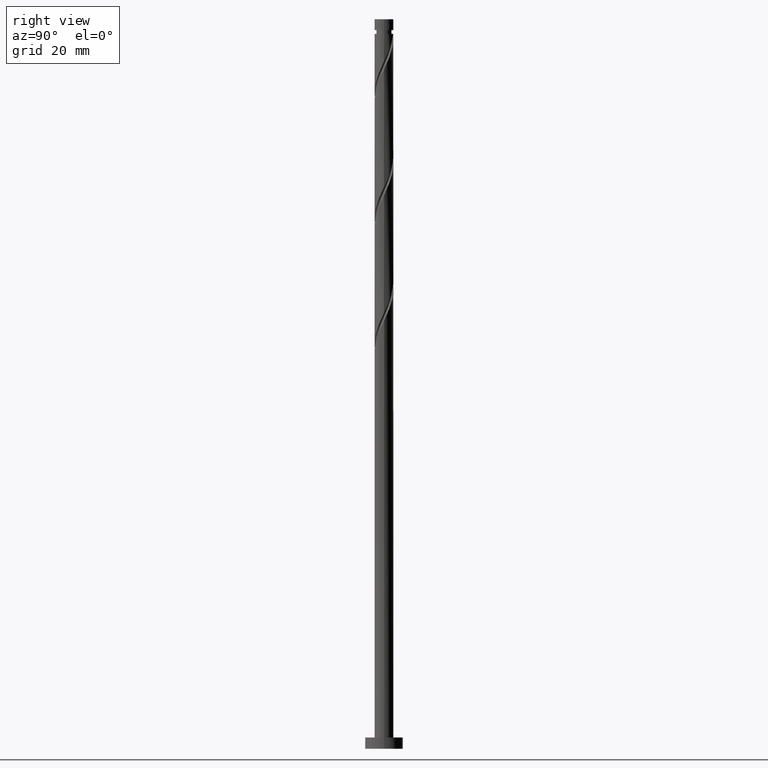
[diagram: clean part render]
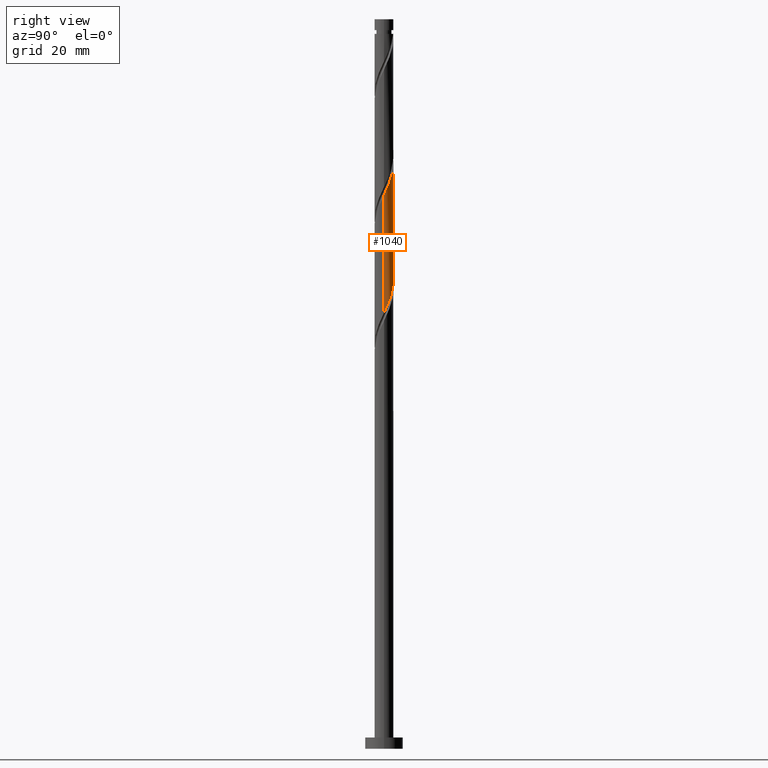
[diagram: same view with one face highlighted and labeled with its STEP entity id]
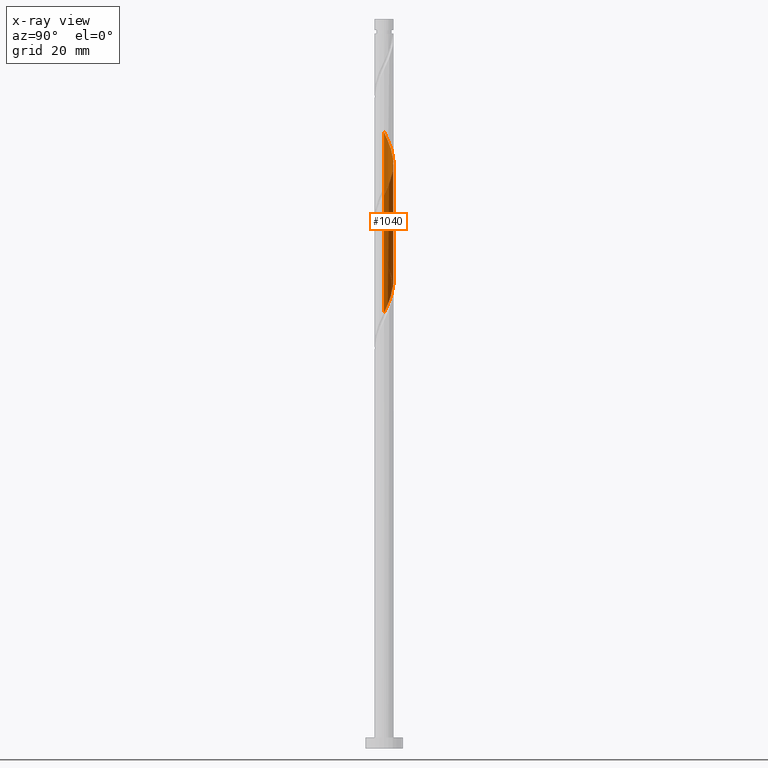
[diagram: x-ray of the same camera — body ghosted, the highlighted face saturated]
A machine part, right view. The second image highlights one B-rep face of the part: STEP entity #1040.
The next image is the same camera in x-ray: the body ghosted, the highlighted face saturated — about 0% of this face is hidden behind the body in this view.
In plain terms, the highlighted cylindrical surface (edge-blend (fillet) strip) has radius 2.5 mm, axis along (-0, -0, -1).
Its self-contained STEP definition (entity closure, byte-faithful):
#49 = FACE_OUTER_BOUND ( 'NONE', #627, .T. ) ;
#104 = CARTESIAN_POINT ( 'NONE',  ( 1.655019618953363914, 1.902429351286329950, 151.4006665771530322 ) ) ;
#115 = CARTESIAN_POINT ( 'NONE',  ( -1.655842198490355077, 1.873015379995222052, 159.0395554660418611 ) ) ;
#126 = CARTESIAN_POINT ( 'NONE',  ( 1.106241244887210096, 2.265956240501273200, 152.7895554660418895 ) ) ;
#141 = CARTESIAN_POINT ( 'NONE',  ( -1.873015379995218943, 1.655842198490353301, 128.4839999104863466 ) ) ;
#153 = CARTESIAN_POINT ( 'NONE',  ( -0.7941578015096464327, 2.370509098548530424, 125.7062221327085467 ) ) ;
#174 = EDGE_CURVE ( 'NONE', #1552, #505, #1163, .T. ) ;
#176 = CARTESIAN_POINT ( 'NONE',  ( -2.500000000000000000, 0.000000000000000000, 193.4900000000000091 ) ) ;
#185 = CARTESIAN_POINT ( 'NONE',  ( 0.8200423376424332833, 2.384503709418414275, 122.2339999104863608 ) ) ;
#192 = CARTESIAN_POINT ( 'NONE',  ( 2.084192795893799577, 1.380630431920282675, 118.7617776882641465 ) ) ;
#219 = CARTESIAN_POINT ( 'NONE',  ( -2.500000000000003109, 2.063622253219550189E-15, 163.5315443663873793 ) ) ;
#237 = CARTESIAN_POINT ( 'NONE',  ( 1.380630431920286005, 2.084192795893801797, 152.0951110215975177 ) ) ;
#268 = CARTESIAN_POINT ( 'NONE',  ( -1.902429351286331061, 1.655019618953362359, 159.7339999104863750 ) ) ;
#337 = CARTESIAN_POINT ( 'NONE',  ( 2.475061956595791646, 0.4820743581320850457, 116.6784443549307895 ) ) ;
#363 = CARTESIAN_POINT ( 'NONE',  ( 0.1535646293339501534, 2.495279123588690418, 154.8728887993752039 ) ) ;
#372 = CARTESIAN_POINT ( 'NONE',  ( -2.500000000000003109, 2.063622253219549794E-15, 163.5315443663873793 ) ) ;
#383 = CARTESIAN_POINT ( 'NONE',  ( -2.370509098548532645, 0.7941578015096485421, 161.8173332438196610 ) ) ;
#410 = CARTESIAN_POINT ( 'NONE',  ( -1.655019618953360139, 1.902429351286329506, 127.7895554660418753 ) ) ;
#425 = CARTESIAN_POINT ( 'NONE',  ( -2.449999999999999734, 0.4974937185533113149, 131.2617776882641465 ) ) ;
#455 = CARTESIAN_POINT ( 'NONE',  ( -0.1535646293339474611, 2.495279123588687753, 124.3173332438196894 ) ) ;
#475 = VERTEX_POINT ( 'NONE', #1661 ) ;
#505 = VERTEX_POINT ( 'NONE', #219 ) ;
#511 = CARTESIAN_POINT ( 'NONE',  ( -0.1749450994641887080, 2.515496290581588301, 155.5673332438196610 ) ) ;
#558 = VECTOR ( 'NONE', #846, 1000.000000000000000 ) ;
#587 = CYLINDRICAL_SURFACE ( 'NONE', #1006, 2.500000000000000000 ) ;
#602 = CARTESIAN_POINT ( 'NONE',  ( 2.495279123588686865, 0.1535646293339463786, 115.9839999104863608 ) ) ;
#627 = EDGE_LOOP ( 'NONE', ( #774, #990, #1132, #891 ) ) ;
#649 = CARTESIAN_POINT ( 'NONE',  ( -0.4974937185533108153, 2.450000000000002842, 156.2617776882641181 ) ) ;
#688 = CARTESIAN_POINT ( 'NONE',  ( -1.380630431920283341, 2.084192795893799133, 127.0951110215974609 ) ) ;
#699 = CARTESIAN_POINT ( 'NONE',  ( -0.4820743581320866555, 2.475061956595791646, 125.0117776882641323 ) ) ;
#714 = CARTESIAN_POINT ( 'NONE',  ( 1.902429351286330172, 1.655019618953359251, 119.4562221327085751 ) ) ;
#719 = CARTESIAN_POINT ( 'NONE',  ( 2.500000000000003553, 6.355358388538470584E-16, 146.8648776997207506 ) ) ;
#730 = CARTESIAN_POINT ( 'NONE',  ( 2.500000000000000000, 0.07685487914418386024, 115.8218413648356773 ) ) ;
#774 = ORIENTED_EDGE ( 'NONE', *, *, #174, .F. ) ;
#775 = VECTOR ( 'NONE', #1250, 1000.000000000000000 ) ;
#781 = CARTESIAN_POINT ( 'NONE',  ( -2.265956240501273200, 1.106241244887208985, 161.1228887993752608 ) ) ;
#791 = CARTESIAN_POINT ( 'NONE',  ( 2.091011141037082410, 1.409255045694377317, 150.0117776882640896 ) ) ;
#814 = CARTESIAN_POINT ( 'NONE',  ( -2.495279123588690418, 0.1535646293339485713, 163.2062221327086036 ) ) ;
#820 = CARTESIAN_POINT ( 'NONE',  ( -2.500000000000000444, 0.2512594538148055778, 131.7919179742849281 ) ) ;
#846 = DIRECTION ( 'NONE',  ( -0.000000000000000000, -0.000000000000000000, -1.000000000000000000 ) ) ;
#852 = CARTESIAN_POINT ( 'NONE',  ( 2.500000000000000444, 2.938418643171334019E-15, 115.6586776768075424 ) ) ;
#854 = DIRECTION ( 'NONE',  ( -1.000000000000000000, 0.000000000000000000, 0.000000000000000000 ) ) ;
#858 = CARTESIAN_POINT ( 'NONE',  ( 2.500000000000000000, 3.061616997868383141E-16, 193.4900000000000091 ) ) ;
#877 = CARTESIAN_POINT ( 'NONE',  ( 2.500000000000000888, 2.938418643171334019E-15, 115.6586776768075424 ) ) ;
#883 = CARTESIAN_POINT ( 'NONE',  ( 2.370509098548531313, 0.7941578015096449894, 117.3728887993752465 ) ) ;
#891 = ORIENTED_EDGE ( 'NONE', *, *, #1120, .F. ) ;
#925 = CARTESIAN_POINT ( 'NONE',  ( 1.873015379995222940, 1.655842198490353523, 150.7062221327086036 ) ) ;
#961 = CARTESIAN_POINT ( 'NONE',  ( -1.106241244887206987, 2.265956240501270980, 126.4006665771530180 ) ) ;
#990 = ORIENTED_EDGE ( 'NONE', *, *, #1638, .T. ) ;
#996 = CARTESIAN_POINT ( 'NONE',  ( 1.655842198490353967, 1.873015379995218055, 120.1506665771529896 ) ) ;
#1006 = AXIS2_PLACEMENT_3D ( 'NONE', #1127, #1412, #854 ) ;
#1009 = EDGE_CURVE ( 'NONE', #475, #1548, #1572, .T. ) ;
#1040 = ADVANCED_FACE ( 'NONE', ( #49 ), #587, .T. ) ;
#1076 = CARTESIAN_POINT ( 'NONE',  ( -1.114648691668405300, 2.237757425227750119, 157.6506665771529754 ) ) ;
#1081 = CARTESIAN_POINT ( 'NONE',  ( -2.237757425227747010, 1.114648691668404634, 129.8728887993752323 ) ) ;
#1118 = CARTESIAN_POINT ( 'NONE',  ( 0.1749450994641913448, 2.515496290581585193, 123.6228887993752323 ) ) ;
#1120 = EDGE_CURVE ( 'NONE', #505, #475, #1388, .T. ) ;
#1127 = CARTESIAN_POINT ( 'NONE',  ( 0.000000000000000000, 0.000000000000000000, 193.4900000000000091 ) ) ;
#1132 = ORIENTED_EDGE ( 'NONE', *, *, #1009, .F. ) ;
#1133 = CARTESIAN_POINT ( 'NONE',  ( 1.114648691668405522, 2.237757425227745234, 121.5395554660418753 ) ) ;
#1163 =( BOUNDED_CURVE ( )  B_SPLINE_CURVE ( 2, ( #1294, #1702, #1182, #1338, #1590, #791, #925, #104, #237, #126, #1725, #1317, #363, #511, #649, #1746, #1076, #1447, #115, #268, #1206, #781, #383, #1735, #814, #1350, #372 ),
 .UNSPECIFIED., .F., .T. ) 
 B_SPLINE_CURVE_WITH_KNOTS ( ( 3, 2, 2, 2, 2, 2, 2, 2, 2, 2, 2, 2, 2, 3 ),
 ( 0.4295317669814466277, 0.4375000000000000000, 0.4479166666666666297, 0.4583333333333333703, 0.4687500000000000000, 0.4791666666666666297, 0.4895833333333333703, 0.5000000000000000000, 0.5104166666666667407, 0.5208333333333332593, 0.5312500000000000000, 0.5416666666666667407, 0.5520833333333332593, 0.5545317669814457950 ),
 .UNSPECIFIED. ) 
 CURVE ( )  GEOMETRIC_REPRESENTATION_ITEM ( )  RATIONAL_B_SPLINE_CURVE ( ( 0.9062941362546537150, 0.9031415850403585743, 0.9090909090909338186, 0.9013135103398520753, 0.9090909090909338186, 0.9013135103398520753, 0.9090909090909338186, 0.9013135103398520753, 0.9090909090909338186, 0.9013135103398520753, 0.9090909090909338186, 0.9013135103398520753, 0.9090909090909338186, 0.9013135103398520753, 0.9090909090909338186, 0.9013135103398520753, 0.9090909090909338186, 0.9013135103398520753, 0.9090909090909338186, 0.9013135103398520753, 0.9090909090909338186, 0.9013135103398520753, 0.9090909090909338186, 0.9013135103398520753, 0.9090909090909338186, 0.9072628343904278747, 0.9062941362546544921 ) ) 
 REPRESENTATION_ITEM ( '' )  );
#1182 = CARTESIAN_POINT ( 'NONE',  ( 2.450000000000002842, 0.4974937185533110373, 147.9284443549307753 ) ) ;
#1206 = CARTESIAN_POINT ( 'NONE',  ( -2.084192795893801797, 1.380630431920285117, 160.4284443549307753 ) ) ;
#1242 = CARTESIAN_POINT ( 'NONE',  ( -2.500000000000000888, 3.342170823149074637E-15, 132.3253443434741996 ) ) ;
#1250 = DIRECTION ( 'NONE',  ( -0.000000000000000000, -0.000000000000000000, -1.000000000000000000 ) ) ;
#1260 = LINE ( 'NONE', #858, #558 ) ;
#1268 = CARTESIAN_POINT ( 'NONE',  ( 1.409255045694378650, 2.091011141037077081, 120.8451110215974325 ) ) ;
#1294 = CARTESIAN_POINT ( 'NONE',  ( 2.500000000000003553, 6.355358388538470584E-16, 146.8648776997207506 ) ) ;
#1317 = CARTESIAN_POINT ( 'NONE',  ( 0.4820743581320889870, 2.475061956595793866, 154.1784443549307468 ) ) ;
#1338 = CARTESIAN_POINT ( 'NONE',  ( 2.384503709418420048, 0.8200423376424310629, 148.6228887993752323 ) ) ;
#1350 = CARTESIAN_POINT ( 'NONE',  ( -2.500000000000002665, 0.07685487914419712741, 163.3683806783592445 ) ) ;
#1365 = CARTESIAN_POINT ( 'NONE',  ( -2.384503709418415163, 0.8200423376424315069, 130.5673332438196610 ) ) ;
#1388 = LINE ( 'NONE', #176, #775 ) ;
#1412 = DIRECTION ( 'NONE',  ( -0.000000000000000000, -0.000000000000000000, -1.000000000000000000 ) ) ;
#1447 = CARTESIAN_POINT ( 'NONE',  ( -1.409255045694378872, 2.091011141037081078, 158.3451110215974325 ) ) ;
#1534 = CARTESIAN_POINT ( 'NONE',  ( 0.4974937185533118145, 2.449999999999999734, 122.9284443549307895 ) ) ;
#1548 = VERTEX_POINT ( 'NONE', #852 ) ;
#1552 = VERTEX_POINT ( 'NONE', #719 ) ;
#1572 =( BOUNDED_CURVE ( )  B_SPLINE_CURVE ( 2, ( #1242, #820, #425, #1365, #1081, #1650, #141, #410, #688, #961, #153, #699, #455, #1118, #1534, #185, #1133, #1268, #996, #714, #192, #1664, #883, #337, #602, #730, #877 ),
 .UNSPECIFIED., .F., .T. ) 
 B_SPLINE_CURVE_WITH_KNOTS ( ( 3, 2, 2, 2, 2, 2, 2, 2, 2, 2, 2, 2, 2, 3 ),
 ( 0.6795317669814463502, 0.6875000000000000000, 0.6979166666666666297, 0.7083333333333333703, 0.7187500000000000000, 0.7291666666666666297, 0.7395833333333333703, 0.7500000000000000000, 0.7604166666666666297, 0.7708333333333333703, 0.7812500000000000000, 0.7916666666666666297, 0.8020833333333333703, 0.8045317669814462391 ),
 .UNSPECIFIED. ) 
 CURVE ( )  GEOMETRIC_REPRESENTATION_ITEM ( )  RATIONAL_B_SPLINE_CURVE ( ( 0.9062941362546484969, 0.9031415850403528012, 0.9090909090909282675, 0.9013135103398466352, 0.9090909090909282675, 0.9013135103398466352, 0.9090909090909282675, 0.9013135103398466352, 0.9090909090909282675, 0.9013135103398466352, 0.9090909090909282675, 0.9013135103398466352, 0.9090909090909282675, 0.9013135103398466352, 0.9090909090909282675, 0.9013135103398466352, 0.9090909090909282675, 0.9013135103398466352, 0.9090909090909282675, 0.9013135103398466352, 0.9090909090909282675, 0.9013135103398466352, 0.9090909090909282675, 0.9013135103398466352, 0.9090909090909282675, 0.9072628343904219905, 0.9062941362546484969 ) ) 
 REPRESENTATION_ITEM ( '' )  );
#1590 = CARTESIAN_POINT ( 'NONE',  ( 2.237757425227750119, 1.114648691668403968, 149.3173332438196894 ) ) ;
#1638 = EDGE_CURVE ( 'NONE', #1552, #1548, #1260, .T. ) ;
#1650 = CARTESIAN_POINT ( 'NONE',  ( -2.091011141037077969, 1.409255045694377539, 129.1784443549307753 ) ) ;
#1661 = CARTESIAN_POINT ( 'NONE',  ( -2.500000000000000444, 3.342170823149074243E-15, 132.3253443434741996 ) ) ;
#1664 = CARTESIAN_POINT ( 'NONE',  ( 2.265956240501271868, 1.106241244887205433, 118.0673332438196894 ) ) ;
#1702 = CARTESIAN_POINT ( 'NONE',  ( 2.500000000000001332, 0.2512594538148118506, 147.3983040689099937 ) ) ;
#1725 = CARTESIAN_POINT ( 'NONE',  ( 0.7941578015096493193, 2.370509098548532645, 153.4839999104863182 ) ) ;
#1735 = CARTESIAN_POINT ( 'NONE',  ( -2.475061956595794754, 0.4820743581320875992, 162.5117776882642033 ) ) ;
#1746 = CARTESIAN_POINT ( 'NONE',  ( -0.8200423376424318400, 2.384503709418418715, 156.9562221327086036 ) ) ;